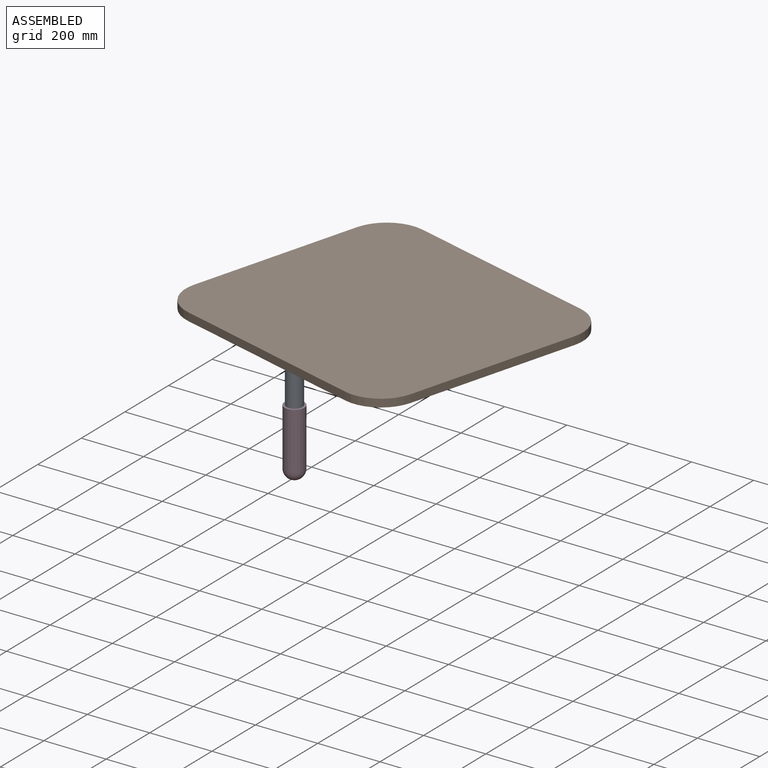
[diagram: assembled view]
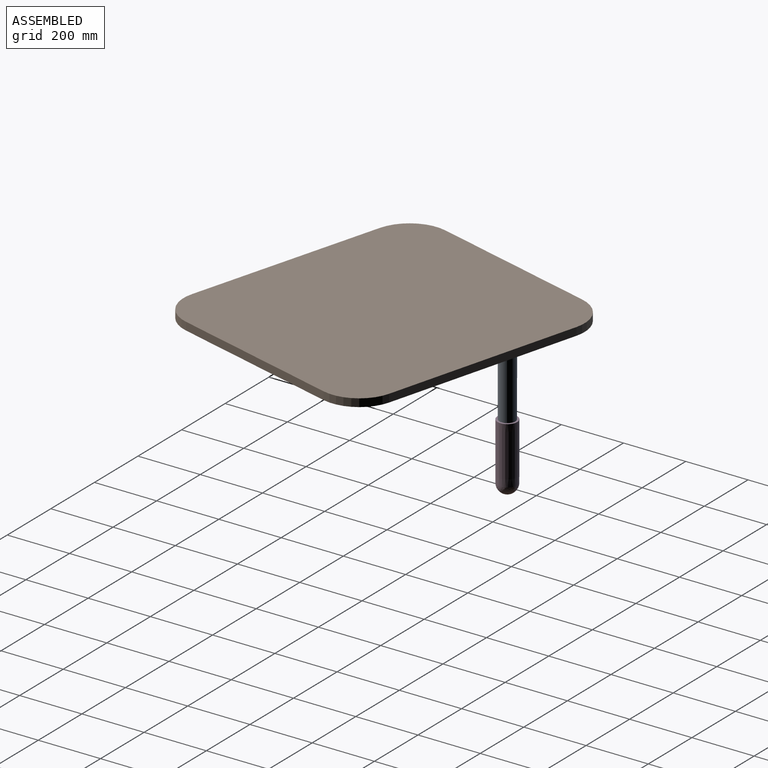
[diagram: assembled view, second angle]
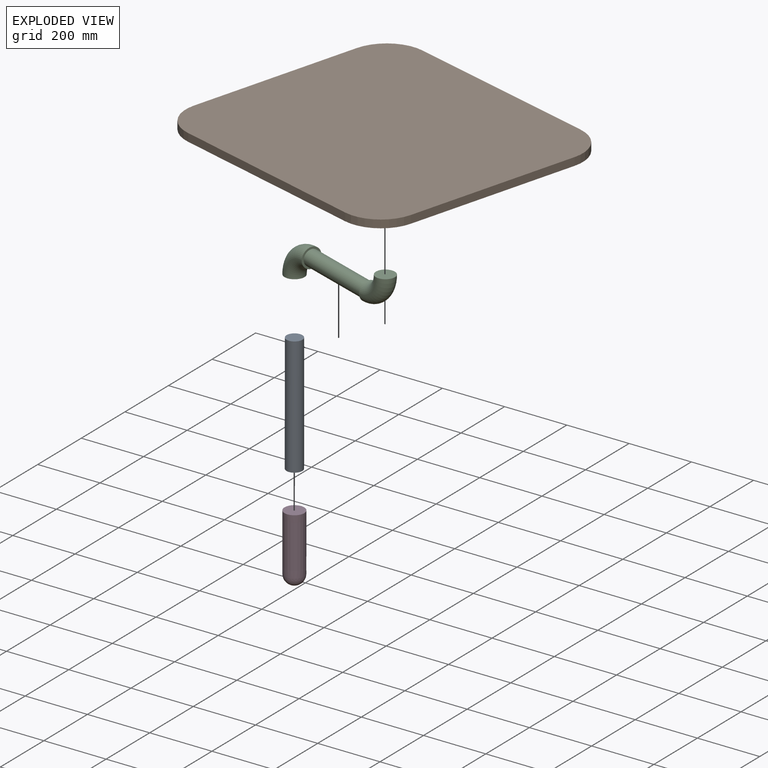
[diagram: exploded view]
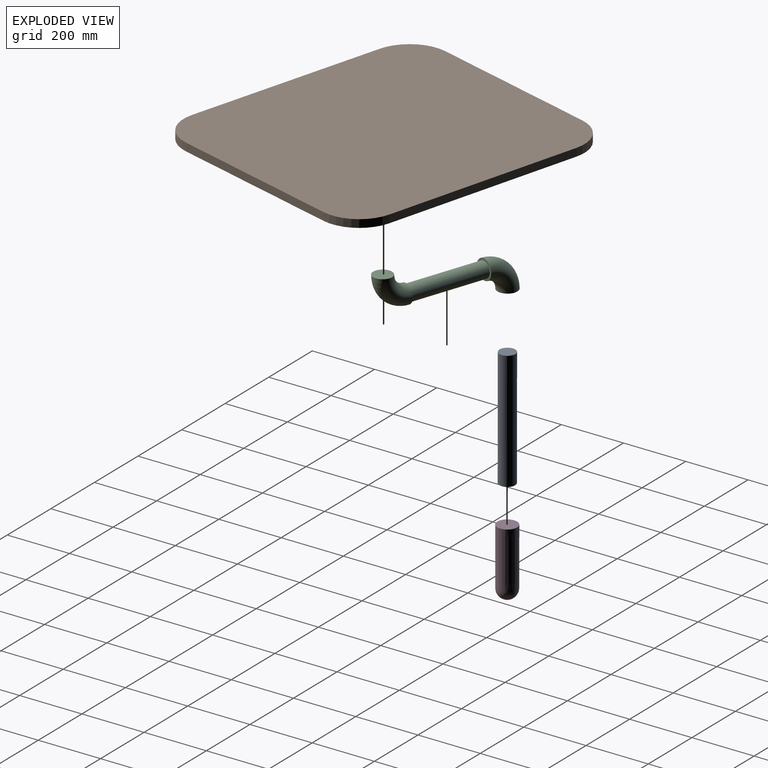
[diagram: exploded view, second angle]
ASSEMBLY  parts=4 mates=3
PART A: 3 faces, bbox 50.8x50.8x381 mm
  f0: cylinder r=25.4mm len=381mm, axis (0,0,-1), area 60804.9mm2, adj f1,f2
  f1: plane 50.8x50.8mm, normal (0,0,1), area 2026.8mm2, adj f0
  f2: plane 50.8x50.8mm, normal (0,0,-1), area 2026.8mm2, adj f0
PART B: 17 faces, bbox 807.7x889.3x99.1 mm
  f0: plane 74.01x74.01mm, normal (0,0,-1), area 4301.5mm2, adj f1
  f1: torus R=89.93mm, axis (0,0,-1), area 20910.5mm2, adj f0,f6
  f2: plane 192.08x16.76mm, normal (0,1,0), area 3220mm2, adj f3,f5,f6,f12
  f3: plane 274.66x16.76mm, normal (-1,0,0), area 4604.4mm2, adj f2,f4,f6,f12
  f4: plane 190.66x16.76mm, normal (0,-1,0), area 3196.3mm2, adj f3,f5,f6,f12
  f5: plane 274.66x16.76mm, normal (1,0,0), area 4604.4mm2, adj f2,f4,f6,f12
  f6: plane 274.66x192.08mm, normal (0,0,-1), area 31565mm2, adj f1,f2,f3,f4,f5
  f7: plane 563.5x25.4mm, normal (0,1,0), area 14313mm2, adj f11,f12,f13,f16
  f8: plane 645.13x25.4mm, normal (-1,0,0), area 16386.4mm2, adj f11,f12,f13,f14
  f9: plane 560.18x25.4mm, normal (0,-1,0), area 14228.6mm2, adj f11,f12,f14,f15
  f10: plane 645.13x25.4mm, normal (1,0,0), area 16386.4mm2, adj f11,f12,f15,f16
  f11: plane 889.34x807.71mm, normal (0,0,1), area 704057.2mm2, adj f7,f8,f9,f10,f13,f14,f15,f16
  f12: plane 889.34x807.71mm, normal (0,0,-1), area 651495.2mm2, adj f2,f3,f4,f5,f7,f8,f9,f10
  f13: cylinder r=122.1mm len=122.42mm, axis (0,0,-1), area 4879.7mm2, adj f7,f8,f11,f12
  f14: cylinder r=122.1mm len=122.1mm, axis (0,0,-1), area 4863.8mm2, adj f8,f9,f11,f12
  f15: cylinder r=122.1mm len=122.1mm, axis (0,0,-1), area 4863.8mm2, adj f9,f10,f11,f12
  f16: cylinder r=122.1mm len=122.42mm, axis (0,0,-1), area 4879.7mm2, adj f7,f10,f11,f12
PART C: 7 faces, bbox 486.6x64.1x152.4 mm
  f0: torus R=76.2mm, axis (0,-1,0), area 24098.3mm2, adj f1,f2
  f1: plane 64.09x64.09mm, normal (1,0,0), area 1198.8mm2, adj f0,f3
  f2: plane 64.09x64.09mm, normal (0,0,-1), area 3225.6mm2, adj f0
  f3: cylinder r=25.4mm len=254mm, axis (-1,0,0), area 40536.6mm2, adj f1,f6
  f4: torus R=76.2mm, axis (0,1,0), area 22922.9mm2, adj f5,f6
  f5: plane 60.96x60.96mm, normal (0,0,1), area 2918.6mm2, adj f4
  f6: plane 60.96x60.96mm, normal (-1,0,0), area 891.8mm2, adj f3,f4
PART D: 4 faces, bbox 63.5x63.5x215.9 mm
  f0: cylinder r=0.01mm len=215.9mm, axis (0,0,1), area 9.1mm2, adj f1,f3
  f1: cone r=0.01mm half-angle=89.9deg, axis (0,0,-1), area 3168.3mm2, adj f0,f2
  f2: cone r=31.56mm half-angle=0.1deg, axis (0,0,1), area 36631.3mm2, adj f1,f3
  f3: revolved ~63.12x63.12mm, area 12536.4mm2, adj f0,f2
PLACE A rot(axis=(0,0,-1),18.9deg) t=(-189.28,334.36,-178.87)mm
PLACE B rot(axis=(0,0,-1),105deg) t=(300.35,595.16,-179.15)mm
PLACE C rot(axis=(0,0,-1),18.9deg) t=(-189.21,334.57,-178.87)mm
PLACE D t=(-189.21,334.54,-177.57)mm fixed
MATE fastened C.f2 <-> A.f0  axis (0,0,-1) through (-189.21,334.97,202.13)mm
MATE revolute B.f1 <-> C.f5  axis (0,0,-1) through (195.17,203.17,354.67)mm
MATE revolute A.f0 <-> D.f1  axis (0,0,-1) through (-189.21,334.77,11.63)mm
